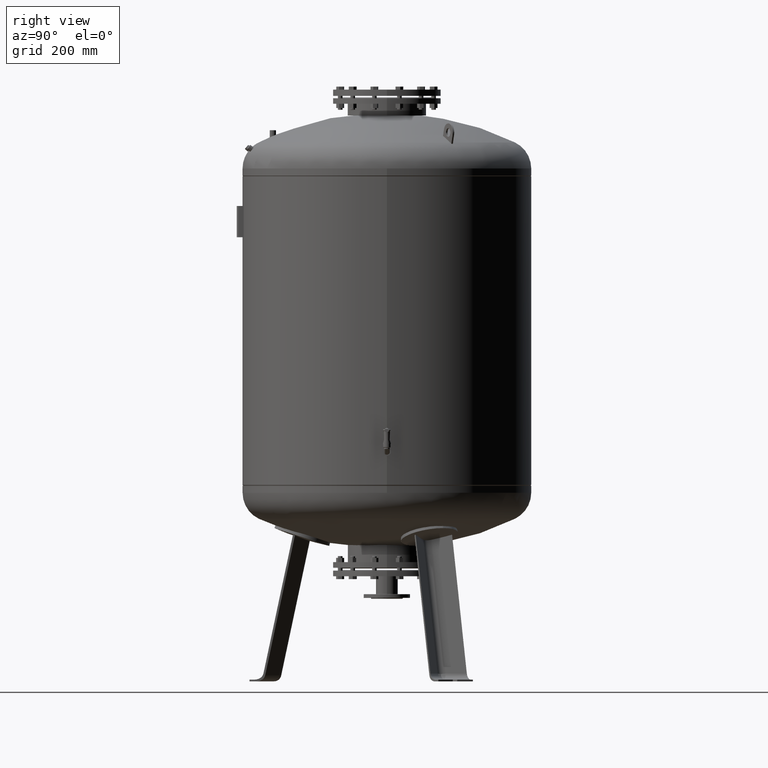
[diagram: clean part render]
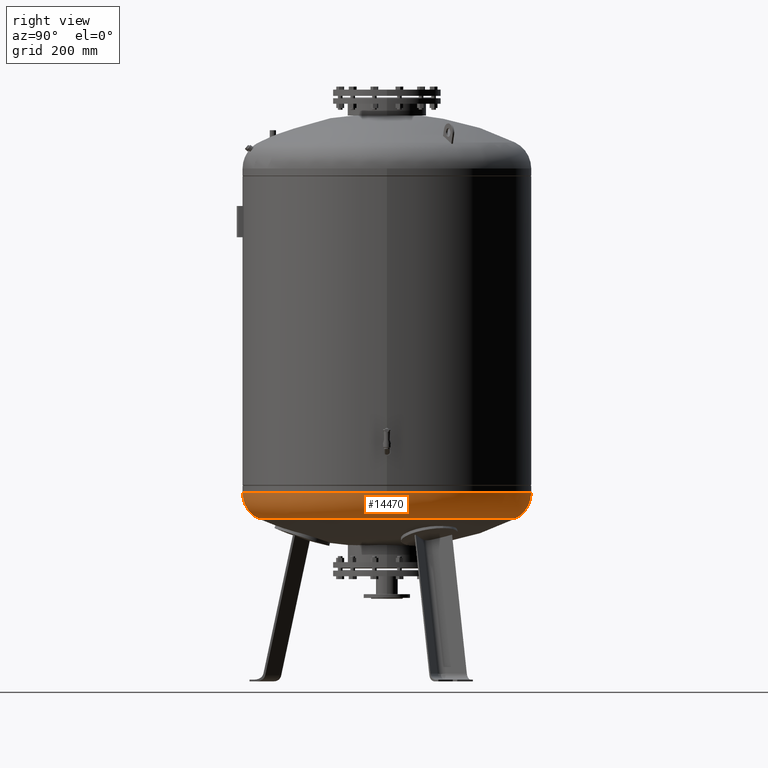
[diagram: same view with one face highlighted and labeled with its STEP entity id]
A machine part, right view. The second image highlights one B-rep face of the part: STEP entity #14470.
In plain terms, the highlighted toroidal blend (fillet) surface has major radius 399.4 mm and minor (blend) radius 100.6 mm.
Its self-contained STEP definition (entity closure, byte-faithful):
#14316=CARTESIAN_POINT('',(500.0,2.569315E-014,653.455355072719500));
#14317=VERTEX_POINT('',#14316);
#14324=CARTESIAN_POINT('',(-6.123032E-014,499.999999999999940,653.455355072719610));
#14325=VERTEX_POINT('',#14324);
#14326=CARTESIAN_POINT('',(-2.595210E-014,-3.553717E-014,653.455355072719500));
#14327=DIRECTION('',(0.0,0.0,1.0));
#14328=DIRECTION('',(-1.0,0.0,0.0));
#14329=AXIS2_PLACEMENT_3D('',#14326,#14327,#14328);
#14330=CIRCLE('',#14329,500.0);
#14331=EDGE_CURVE('',#14317,#14325,#14330,.T.);
#14348=CARTESIAN_POINT('',(3.381269E-030,-500.000000000000060,653.455355072719390));
#14349=VERTEX_POINT('',#14348);
#14350=CARTESIAN_POINT('',(1.211146E-014,-443.777777777777600,563.172616747466120));
#14351=VERTEX_POINT('',#14350);
#14352=CARTESIAN_POINT('',(0.0,-399.399999999999980,653.455355072719500));
#14353=DIRECTION('',(1.0,0.0,0.0));
#14354=DIRECTION('',(0.0,-1.0,0.0));
#14355=AXIS2_PLACEMENT_3D('',#14352,#14353,#14354);
#14356=CIRCLE('',#14355,100.600000000000010);
#14357=EDGE_CURVE('',#14349,#14351,#14356,.T.);
#14367=CARTESIAN_POINT('',(-4.223385E-014,443.777777777777600,563.172616747466350));
#14368=VERTEX_POINT('',#14367);
#14369=CARTESIAN_POINT('',(-4.891078E-014,399.399999999999860,653.455355072719730));
#14370=DIRECTION('',(-1.0,0.0,0.0));
#14371=DIRECTION('',(0.0,1.0,0.0));
#14372=AXIS2_PLACEMENT_3D('',#14369,#14370,#14371);
#14373=CIRCLE('',#14372,100.600000000000010);
#14374=EDGE_CURVE('',#14325,#14368,#14373,.T.);
#14402=CARTESIAN_POINT('',(-1.384064E-014,-1.895250E-014,563.172616747466240));
#14403=DIRECTION('',(0.0,0.0,1.0));
#14404=DIRECTION('',(-1.0,0.0,0.0));
#14405=AXIS2_PLACEMENT_3D('',#14402,#14403,#14404);
#14406=CIRCLE('',#14405,443.777777777777600);
#14407=EDGE_CURVE('',#14351,#14368,#14406,.T.);
#14452=CARTESIAN_POINT('',(0.0,-3.553717E-014,653.455355072719610));
#14453=DIRECTION('',(-1.341503E-016,-1.836970E-016,1.0));
#14454=DIRECTION('',(0.0,-1.0,0.0));
#14455=AXIS2_PLACEMENT_3D('',#14452,#14453,#14454);
#14456=TOROIDAL_SURFACE('',#14455,399.399999999999920,100.600000000000010);
#14457=ORIENTED_EDGE('',*,*,#14357,.T.);
#14458=ORIENTED_EDGE('',*,*,#14407,.T.);
#14459=ORIENTED_EDGE('',*,*,#14374,.F.);
#14460=ORIENTED_EDGE('',*,*,#14331,.F.);
#14461=CARTESIAN_POINT('',(-2.595210E-014,-3.553717E-014,653.455355072719500));
#14462=DIRECTION('',(0.0,0.0,1.0));
#14463=DIRECTION('',(-1.0,0.0,0.0));
#14464=AXIS2_PLACEMENT_3D('',#14461,#14462,#14463);
#14465=CIRCLE('',#14464,500.0);
#14466=EDGE_CURVE('',#14349,#14317,#14465,.T.);
#14467=ORIENTED_EDGE('',*,*,#14466,.F.);
#14468=EDGE_LOOP('',(#14457,#14458,#14459,#14460,#14467));
#14469=FACE_OUTER_BOUND('',#14468,.T.);
#14470=ADVANCED_FACE('',(#14469),#14456,.T.);